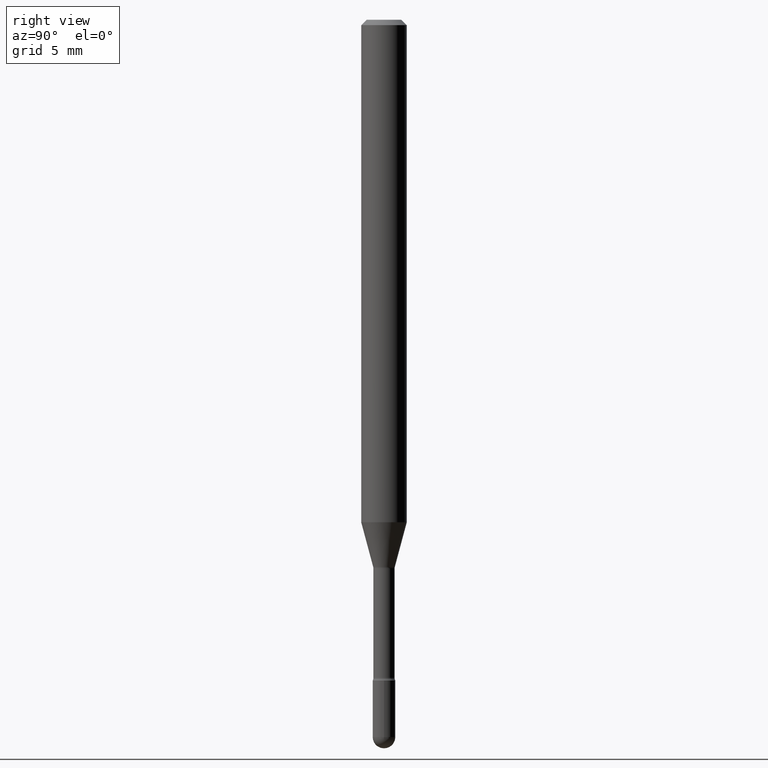
[diagram: clean part render]
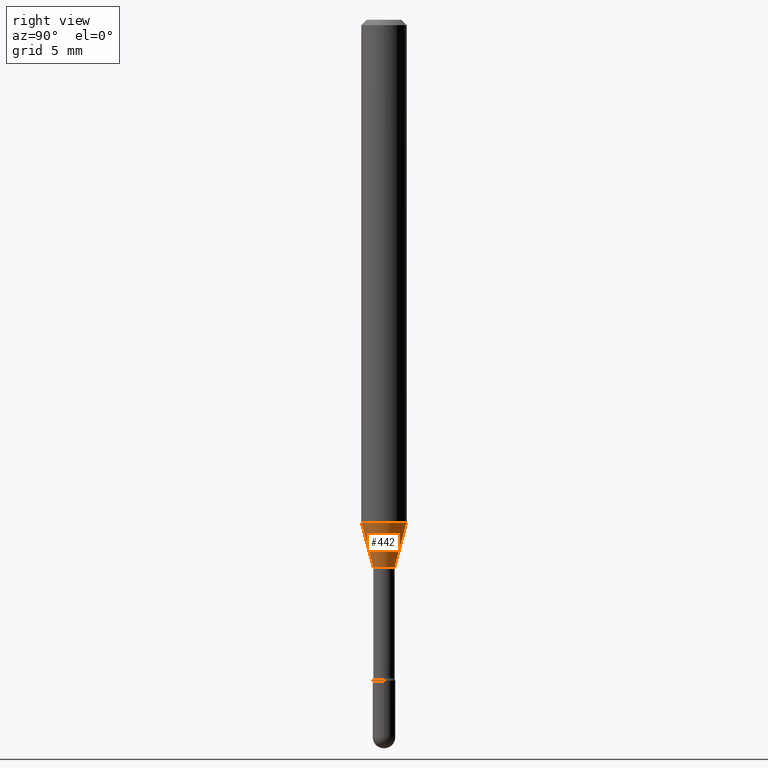
[diagram: same view with one face highlighted and labeled with its STEP entity id]
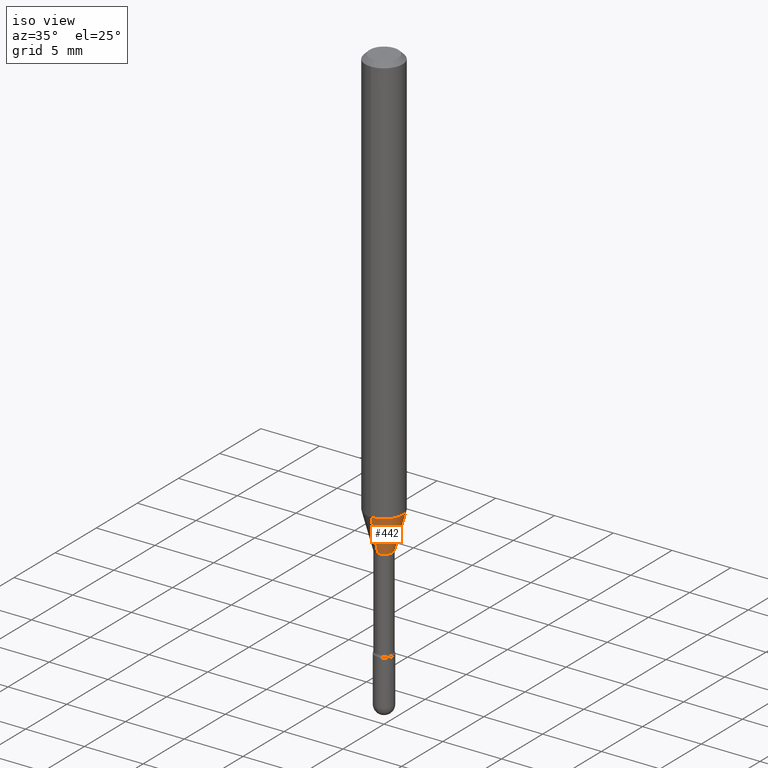
[diagram: same view with one face highlighted and labeled with its STEP entity id]
A machine part, right view. The second image highlights one B-rep face of the part: STEP entity #442.
A second angle (iso view) of the same face is appended — the face is thin or edge-on in the first view.
In plain terms, the highlighted conical surface has half-angle 15 deg.
Its self-contained STEP definition (entity closure, byte-faithful):
#25 = CARTESIAN_POINT ( 'NONE',  ( 2.107548809652055165E-16, 0.02966111260565873833, -1.502092501787273271 ) ) ;
#65 = ORIENTED_EDGE ( 'NONE', *, *, #92, .F. ) ;
#74 = LINE ( 'NONE', #196, #279 ) ;
#92 = EDGE_CURVE ( 'NONE', #150, #366, #525, .T. ) ;
#94 = DIRECTION ( 'NONE',  ( -2.445454562768948999E-29, 3.491501736225811078E-15, 1.000000000000000000 ) ) ;
#113 = CIRCLE ( 'NONE', #553, 0.02966111260566398414 ) ;
#118 = DIRECTION ( 'NONE',  ( 1.839019923739598738E-15, 0.2588190451025247363, 0.9659258262890673130 ) ) ;
#122 = DIRECTION ( 'NONE',  ( -2.445454562768948999E-29, 3.491501736225811078E-15, 1.000000000000000000 ) ) ;
#150 = VERTEX_POINT ( 'NONE', #237 ) ;
#153 = CARTESIAN_POINT ( 'NONE',  ( 3.373592863864740573E-29, -4.816652707775393500E-15, -1.379536105567578330 ) ) ;
#156 = EDGE_CURVE ( 'NONE', #397, #366, #413, .T. ) ;
#168 = EDGE_CURVE ( 'NONE', #453, #150, #74, .T. ) ;
#174 = CARTESIAN_POINT ( 'NONE',  ( 4.440892098500961428E-16, 0.06249999999999514971, -1.379536105567578552 ) ) ;
#180 = CARTESIAN_POINT ( 'NONE',  ( -2.071224423039644956E-16, -0.02966111260566922994, -1.502092501787273271 ) ) ;
#196 = CARTESIAN_POINT ( 'NONE',  ( -2.071224423039644956E-16, -0.02966111260566922994, -1.502092501787273271 ) ) ;
#200 = DIRECTION ( 'NONE',  ( -2.445454562768948999E-29, 3.491501736225811078E-15, 1.000000000000000000 ) ) ;
#237 = CARTESIAN_POINT ( 'NONE',  ( -4.364351673553580935E-16, -0.06250000000000484335, -1.379536105567578108 ) ) ;
#260 = DIRECTION ( 'NONE',  ( -6.982962677686265922E-15, -1.000000000000000000, 0.000000000000000000 ) ) ;
#263 = CARTESIAN_POINT ( 'NONE',  ( 3.673298962196712735E-29, -5.244558577962036648E-15, -1.502092501787273271 ) ) ;
#265 = ORIENTED_EDGE ( 'NONE', *, *, #168, .F. ) ;
#273 = EDGE_LOOP ( 'NONE', ( #405, #391, #65, #265 ) ) ;
#279 = VECTOR ( 'NONE', #364, 39.37007874015748854 ) ;
#324 = DIRECTION ( 'NONE',  ( -6.982962677686265922E-15, -1.000000000000000000, 0.000000000000000000 ) ) ;
#361 = CARTESIAN_POINT ( 'NONE',  ( 3.673298962196712735E-29, -5.244558577962036648E-15, -1.502092501787273271 ) ) ;
#364 = DIRECTION ( 'NONE',  ( -1.807323732225328562E-15, -0.2588190451025179639, 0.9659258262890690894 ) ) ;
#366 = VERTEX_POINT ( 'NONE', #174 ) ;
#374 = DIRECTION ( 'NONE',  ( -6.982962677686265922E-15, -1.000000000000000000, 4.370956789862821150E-15 ) ) ;
#384 = AXIS2_PLACEMENT_3D ( 'NONE', #153, #200, #374 ) ;
#387 = FACE_OUTER_BOUND ( 'NONE', #273, .T. ) ;
#391 = ORIENTED_EDGE ( 'NONE', *, *, #156, .T. ) ;
#397 = VERTEX_POINT ( 'NONE', #476 ) ;
#405 = ORIENTED_EDGE ( 'NONE', *, *, #515, .T. ) ;
#413 = LINE ( 'NONE', #25, #551 ) ;
#442 = ADVANCED_FACE ( 'NONE', ( #387 ), #534, .T. ) ;
#453 = VERTEX_POINT ( 'NONE', #180 ) ;
#476 = CARTESIAN_POINT ( 'NONE',  ( 3.274220454076509529E-16, 0.02966111260565873833, -1.502092501787273271 ) ) ;
#498 = AXIS2_PLACEMENT_3D ( 'NONE', #263, #94, #260 ) ;
#515 = EDGE_CURVE ( 'NONE', #453, #397, #113, .T. ) ;
#525 = CIRCLE ( 'NONE', #384, 0.06250000000000000000 ) ;
#534 = CONICAL_SURFACE ( 'NONE', #498, 0.02966111260566398414, 0.2617993877991500740 ) ;
#551 = VECTOR ( 'NONE', #118, 39.37007874015748854 ) ;
#553 = AXIS2_PLACEMENT_3D ( 'NONE', #361, #122, #324 ) ;